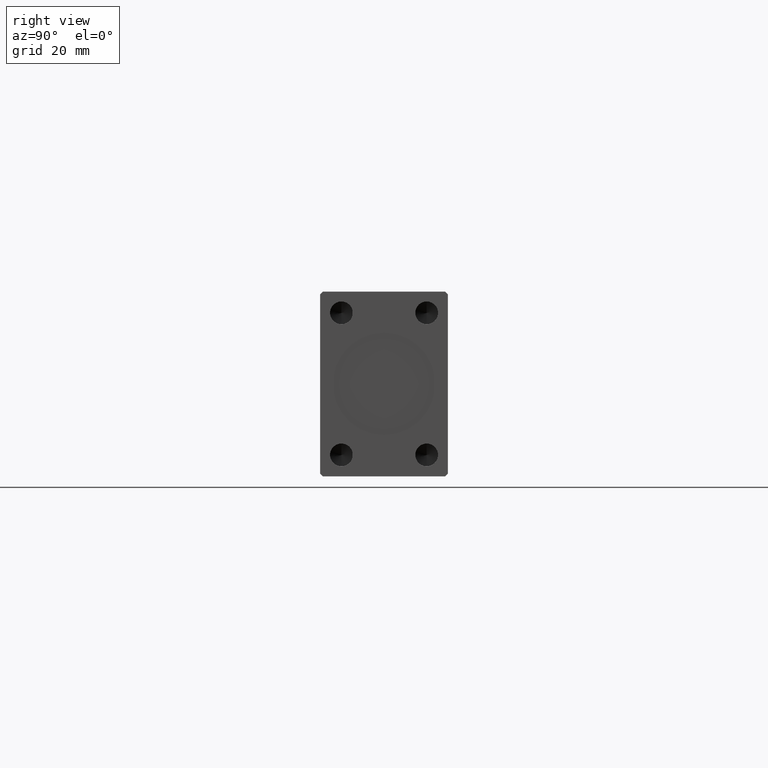
[diagram: clean part render]
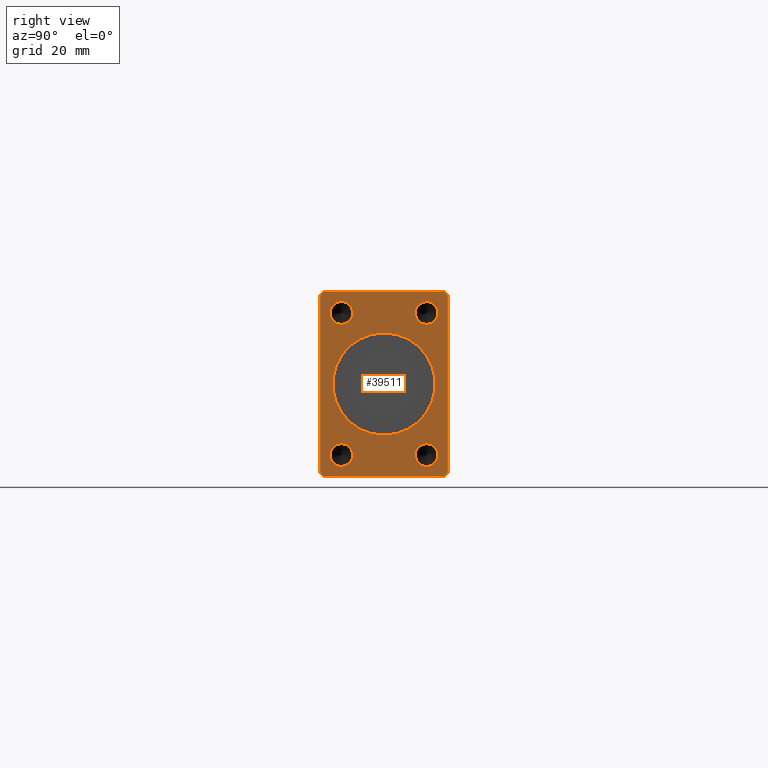
[diagram: same view with one face highlighted and labeled with its STEP entity id]
A machine part, right view. The second image highlights one B-rep face of the part: STEP entity #39511.
In plain terms, the highlighted planar face has unit normal (1, 0, 0).
Its self-contained STEP definition (entity closure, byte-faithful):
#185 = EDGE_CURVE ( 'NONE', #37455, #28257, #964, .T. ) ;
#287 = DIRECTION ( 'NONE',  ( 0.000000000000000000, -1.000000000000000000, 0.000000000000000000 ) ) ;
#728 = LINE ( 'NONE', #28377, #23408 ) ;
#858 = DIRECTION ( 'NONE',  ( 0.000000000000000000, 0.000000000000000000, -1.000000000000000000 ) ) ;
#964 = LINE ( 'NONE', #10987, #33993 ) ;
#1012 = CARTESIAN_POINT ( 'NONE',  ( 238.0000000000000000, 15.00000000000000355, -24.99999999999999289 ) ) ;
#1384 = ORIENTED_EDGE ( 'NONE', *, *, #11431, .T. ) ;
#1779 = DIRECTION ( 'NONE',  ( 1.000000000000000000, 0.000000000000000000, 0.000000000000000000 ) ) ;
#1831 = CARTESIAN_POINT ( 'NONE',  ( 238.0000000000000000, -21.50000000000001421, 32.50000000000000000 ) ) ;
#1906 = CIRCLE ( 'NONE', #5473, 18.00000000000000000 ) ;
#1943 = CARTESIAN_POINT ( 'NONE',  ( 238.0000000000000000, -14.99999999999999645, 20.99999999999999645 ) ) ;
#2081 = CARTESIAN_POINT ( 'NONE',  ( 238.0000000000000000, -14.99999999999999645, -20.99999999999999645 ) ) ;
#2492 = DIRECTION ( 'NONE',  ( 0.000000000000000000, 0.000000000000000000, -1.000000000000000000 ) ) ;
#2562 = EDGE_LOOP ( 'NONE', ( #31180, #30027 ) ) ;
#2996 = CARTESIAN_POINT ( 'NONE',  ( 238.0000000000000000, -14.99999999999999645, 24.99999999999999645 ) ) ;
#3559 = VECTOR ( 'NONE', #14101, 1000.000000000000114 ) ;
#3602 = CARTESIAN_POINT ( 'NONE',  ( 238.0000000000000000, -14.99999999999999645, -24.99999999999999645 ) ) ;
#3707 = LINE ( 'NONE', #20862, #33533 ) ;
#4092 = DIRECTION ( 'NONE',  ( 0.000000000000000000, -0.7071067811865474617, 0.7071067811865474617 ) ) ;
#4483 = EDGE_LOOP ( 'NONE', ( #6012, #23291 ) ) ;
#5202 = LINE ( 'NONE', #22794, #40582 ) ;
#5473 = AXIS2_PLACEMENT_3D ( 'NONE', #36135, #1779, #15153 ) ;
#5906 = CIRCLE ( 'NONE', #35856, 4.000000000000000000 ) ;
#6012 = ORIENTED_EDGE ( 'NONE', *, *, #13018, .F. ) ;
#6263 = VERTEX_POINT ( 'NONE', #11597 ) ;
#7966 = CARTESIAN_POINT ( 'NONE',  ( 238.0000000000000000, 22.49999999999999645, -31.50000000000000000 ) ) ;
#8110 = CARTESIAN_POINT ( 'NONE',  ( 238.0000000000000000, 15.00000000000000355, 21.00000000000000000 ) ) ;
#8508 = DIRECTION ( 'NONE',  ( 1.000000000000000000, 0.000000000000000000, 0.000000000000000000 ) ) ;
#8977 = CARTESIAN_POINT ( 'NONE',  ( 238.0000000000000000, -14.99999999999999645, 28.99999999999999645 ) ) ;
#9040 = EDGE_LOOP ( 'NONE', ( #20314, #43848 ) ) ;
#9171 = EDGE_LOOP ( 'NONE', ( #20826, #36707, #10141, #37940, #24529, #40621, #12924, #1384 ) ) ;
#9816 = DIRECTION ( 'NONE',  ( 0.000000000000000000, 0.000000000000000000, -1.000000000000000000 ) ) ;
#10141 = ORIENTED_EDGE ( 'NONE', *, *, #40718, .T. ) ;
#10402 = EDGE_CURVE ( 'NONE', #35313, #29761, #18508, .T. ) ;
#10682 = EDGE_CURVE ( 'NONE', #28611, #26568, #23394, .T. ) ;
#10987 = CARTESIAN_POINT ( 'NONE',  ( 238.0000000000000000, 22.49999999999999645, 31.50000000000000000 ) ) ;
#11030 = DIRECTION ( 'NONE',  ( 0.000000000000000000, 0.000000000000000000, -1.000000000000000000 ) ) ;
#11332 = DIRECTION ( 'NONE',  ( 0.000000000000000000, 0.000000000000000000, -1.000000000000000000 ) ) ;
#11431 = EDGE_CURVE ( 'NONE', #26568, #37455, #5202, .T. ) ;
#11509 = AXIS2_PLACEMENT_3D ( 'NONE', #2996, #16596, #43825 ) ;
#11588 = VERTEX_POINT ( 'NONE', #43740 ) ;
#11597 = CARTESIAN_POINT ( 'NONE',  ( 238.0000000000000000, -22.50000000000001421, -31.50000000000000711 ) ) ;
#12060 = DIRECTION ( 'NONE',  ( 0.000000000000000000, 0.000000000000000000, -1.000000000000000000 ) ) ;
#12394 = EDGE_CURVE ( 'NONE', #11588, #44065, #29941, .T. ) ;
#12821 = AXIS2_PLACEMENT_3D ( 'NONE', #3602, #27902, #38166 ) ;
#12924 = ORIENTED_EDGE ( 'NONE', *, *, #10682, .T. ) ;
#12967 = EDGE_CURVE ( 'NONE', #23565, #6263, #30466, .T. ) ;
#13018 = EDGE_CURVE ( 'NONE', #38925, #36567, #37071, .T. ) ;
#13500 = EDGE_CURVE ( 'NONE', #30723, #28611, #3707, .T. ) ;
#14101 = DIRECTION ( 'NONE',  ( 0.000000000000000000, -0.7071067811865474617, -0.7071067811865474617 ) ) ;
#14240 = DIRECTION ( 'NONE',  ( 1.000000000000000000, -0.000000000000000000, -0.000000000000000000 ) ) ;
#14312 = DIRECTION ( 'NONE',  ( 0.000000000000000000, 0.7071067811865451302, -0.7071067811865500152 ) ) ;
#14975 = FACE_BOUND ( 'NONE', #2562, .T. ) ;
#15000 = VECTOR ( 'NONE', #37598, 1000.000000000000000 ) ;
#15153 = DIRECTION ( 'NONE',  ( 0.000000000000000000, 0.000000000000000000, -1.000000000000000000 ) ) ;
#16405 = CIRCLE ( 'NONE', #12821, 4.000000000000000000 ) ;
#16596 = DIRECTION ( 'NONE',  ( 1.000000000000000000, -0.000000000000000000, -0.000000000000000000 ) ) ;
#16631 = CARTESIAN_POINT ( 'NONE',  ( 238.0000000000000000, -22.50000000000001776, 31.50000000000000000 ) ) ;
#17053 = AXIS2_PLACEMENT_3D ( 'NONE', #17512, #8508, #12060 ) ;
#17228 = EDGE_CURVE ( 'NONE', #31362, #18156, #43603, .T. ) ;
#17230 = AXIS2_PLACEMENT_3D ( 'NONE', #41919, #14240, #11332 ) ;
#17282 = CARTESIAN_POINT ( 'NONE',  ( 238.0000000000000000, 21.49999999999999645, 32.50000000000000000 ) ) ;
#17505 = EDGE_CURVE ( 'NONE', #29761, #35313, #29344, .T. ) ;
#17512 = CARTESIAN_POINT ( 'NONE',  ( 238.0000000000000000, 0.000000000000000000, 0.000000000000000000 ) ) ;
#17842 = AXIS2_PLACEMENT_3D ( 'NONE', #1012, #41620, #11030 ) ;
#18156 = VERTEX_POINT ( 'NONE', #8977 ) ;
#18508 = CIRCLE ( 'NONE', #24193, 4.000000000000000000 ) ;
#18548 = FACE_BOUND ( 'NONE', #9040, .T. ) ;
#18846 = CARTESIAN_POINT ( 'NONE',  ( 238.0000000000000000, -22.50000000000001776, 31.50000000000000000 ) ) ;
#19007 = VERTEX_POINT ( 'NONE', #2081 ) ;
#19452 = DIRECTION ( 'NONE',  ( 1.000000000000000000, -0.000000000000000000, -0.000000000000000000 ) ) ;
#19648 = CARTESIAN_POINT ( 'NONE',  ( 238.0000000000000000, 0.000000000000000000, 0.000000000000000000 ) ) ;
#20314 = ORIENTED_EDGE ( 'NONE', *, *, #10402, .F. ) ;
#20621 = FACE_BOUND ( 'NONE', #4483, .T. ) ;
#20665 = AXIS2_PLACEMENT_3D ( 'NONE', #19648, #26562, #9816 ) ;
#20692 = EDGE_LOOP ( 'NONE', ( #28051, #23400 ) ) ;
#20826 = ORIENTED_EDGE ( 'NONE', *, *, #185, .T. ) ;
#20862 = CARTESIAN_POINT ( 'NONE',  ( 238.0000000000000000, -21.50000000000001776, -32.50000000000000711 ) ) ;
#21063 = FACE_BOUND ( 'NONE', #22347, .T. ) ;
#21141 = CARTESIAN_POINT ( 'NONE',  ( 238.0000000000000000, -14.99999999999999645, -24.99999999999999645 ) ) ;
#21265 = EDGE_CURVE ( 'NONE', #18156, #31362, #5906, .T. ) ;
#21886 = FACE_BOUND ( 'NONE', #20692, .T. ) ;
#22004 = ORIENTED_EDGE ( 'NONE', *, *, #17228, .F. ) ;
#22069 = VECTOR ( 'NONE', #36795, 1000.000000000000114 ) ;
#22191 = DIRECTION ( 'NONE',  ( 0.000000000000000000, 0.000000000000000000, -1.000000000000000000 ) ) ;
#22347 = EDGE_LOOP ( 'NONE', ( #22004, #28778 ) ) ;
#22359 = AXIS2_PLACEMENT_3D ( 'NONE', #21141, #34770, #858 ) ;
#22661 = VERTEX_POINT ( 'NONE', #1831 ) ;
#22787 = CARTESIAN_POINT ( 'NONE',  ( 238.0000000000000000, -14.99999999999999645, 24.99999999999999645 ) ) ;
#22794 = CARTESIAN_POINT ( 'NONE',  ( 238.0000000000000000, 22.49999999999999645, -31.50000000000000000 ) ) ;
#22973 = VERTEX_POINT ( 'NONE', #24315 ) ;
#23218 = EDGE_CURVE ( 'NONE', #36567, #38925, #29471, .T. ) ;
#23291 = ORIENTED_EDGE ( 'NONE', *, *, #23218, .F. ) ;
#23394 = LINE ( 'NONE', #26527, #22069 ) ;
#23400 = ORIENTED_EDGE ( 'NONE', *, *, #24142, .F. ) ;
#23408 = VECTOR ( 'NONE', #14312, 1000.000000000000114 ) ;
#23565 = VERTEX_POINT ( 'NONE', #18846 ) ;
#23816 = CARTESIAN_POINT ( 'NONE',  ( 238.0000000000000000, 0.000000000000000000, -18.00000000000000000 ) ) ;
#24142 = EDGE_CURVE ( 'NONE', #19007, #22973, #30204, .T. ) ;
#24193 = AXIS2_PLACEMENT_3D ( 'NONE', #25754, #32690, #22191 ) ;
#24315 = CARTESIAN_POINT ( 'NONE',  ( 238.0000000000000000, -14.99999999999999645, -28.99999999999999645 ) ) ;
#24529 = ORIENTED_EDGE ( 'NONE', *, *, #38800, .T. ) ;
#25034 = CARTESIAN_POINT ( 'NONE',  ( 238.0000000000000000, -21.50000000000001421, 32.50000000000000000 ) ) ;
#25234 = PLANE ( 'NONE',  #17053 ) ;
#25754 = CARTESIAN_POINT ( 'NONE',  ( 238.0000000000000000, 15.00000000000000355, 25.00000000000000000 ) ) ;
#26527 = CARTESIAN_POINT ( 'NONE',  ( 238.0000000000000000, 21.49999999999999645, -32.50000000000000000 ) ) ;
#26562 = DIRECTION ( 'NONE',  ( 1.000000000000000000, 0.000000000000000000, 0.000000000000000000 ) ) ;
#26568 = VERTEX_POINT ( 'NONE', #7966 ) ;
#27725 = CARTESIAN_POINT ( 'NONE',  ( 238.0000000000000000, 21.49999999999999645, 32.50000000000000000 ) ) ;
#27840 = CARTESIAN_POINT ( 'NONE',  ( 238.0000000000000000, 15.00000000000000355, -24.99999999999999289 ) ) ;
#27902 = DIRECTION ( 'NONE',  ( 1.000000000000000000, -0.000000000000000000, -0.000000000000000000 ) ) ;
#28051 = ORIENTED_EDGE ( 'NONE', *, *, #42045, .F. ) ;
#28257 = VERTEX_POINT ( 'NONE', #17282 ) ;
#28377 = CARTESIAN_POINT ( 'NONE',  ( 238.0000000000000000, -22.50000000000001421, -31.50000000000000711 ) ) ;
#28487 = VECTOR ( 'NONE', #287, 1000.000000000000000 ) ;
#28591 = FACE_OUTER_BOUND ( 'NONE', #9171, .T. ) ;
#28611 = VERTEX_POINT ( 'NONE', #42644 ) ;
#28778 = ORIENTED_EDGE ( 'NONE', *, *, #21265, .F. ) ;
#29344 = CIRCLE ( 'NONE', #17230, 4.000000000000000000 ) ;
#29471 = CIRCLE ( 'NONE', #40838, 4.000000000000000000 ) ;
#29761 = VERTEX_POINT ( 'NONE', #42813 ) ;
#29941 = CIRCLE ( 'NONE', #20665, 18.00000000000000000 ) ;
#30027 = ORIENTED_EDGE ( 'NONE', *, *, #12394, .F. ) ;
#30204 = CIRCLE ( 'NONE', #22359, 4.000000000000000000 ) ;
#30466 = LINE ( 'NONE', #16631, #15000 ) ;
#30723 = VERTEX_POINT ( 'NONE', #31466 ) ;
#31180 = ORIENTED_EDGE ( 'NONE', *, *, #43921, .F. ) ;
#31197 = DIRECTION ( 'NONE',  ( 0.000000000000000000, 0.000000000000000000, -1.000000000000000000 ) ) ;
#31362 = VERTEX_POINT ( 'NONE', #1943 ) ;
#31466 = CARTESIAN_POINT ( 'NONE',  ( 238.0000000000000000, -21.50000000000001776, -32.50000000000000711 ) ) ;
#32690 = DIRECTION ( 'NONE',  ( 1.000000000000000000, -0.000000000000000000, -0.000000000000000000 ) ) ;
#33533 = VECTOR ( 'NONE', #37606, 1000.000000000000000 ) ;
#33993 = VECTOR ( 'NONE', #4092, 1000.000000000000114 ) ;
#34089 = CARTESIAN_POINT ( 'NONE',  ( 238.0000000000000000, 15.00000000000000355, -28.99999999999999289 ) ) ;
#34427 = LINE ( 'NONE', #27725, #28487 ) ;
#34627 = CARTESIAN_POINT ( 'NONE',  ( 238.0000000000000000, 22.49999999999999645, 31.50000000000000000 ) ) ;
#34770 = DIRECTION ( 'NONE',  ( 1.000000000000000000, -0.000000000000000000, -0.000000000000000000 ) ) ;
#35060 = CARTESIAN_POINT ( 'NONE',  ( 238.0000000000000000, 15.00000000000000355, -20.99999999999999289 ) ) ;
#35198 = DIRECTION ( 'NONE',  ( 1.000000000000000000, -0.000000000000000000, -0.000000000000000000 ) ) ;
#35313 = VERTEX_POINT ( 'NONE', #8110 ) ;
#35856 = AXIS2_PLACEMENT_3D ( 'NONE', #22787, #19452, #2492 ) ;
#36135 = CARTESIAN_POINT ( 'NONE',  ( 238.0000000000000000, 0.000000000000000000, 0.000000000000000000 ) ) ;
#36420 = DIRECTION ( 'NONE',  ( 0.000000000000000000, 0.000000000000000000, 1.000000000000000000 ) ) ;
#36567 = VERTEX_POINT ( 'NONE', #35060 ) ;
#36707 = ORIENTED_EDGE ( 'NONE', *, *, #40769, .T. ) ;
#36795 = DIRECTION ( 'NONE',  ( 0.000000000000000000, 0.7071067811865474617, 0.7071067811865474617 ) ) ;
#37071 = CIRCLE ( 'NONE', #17842, 4.000000000000000000 ) ;
#37455 = VERTEX_POINT ( 'NONE', #34627 ) ;
#37598 = DIRECTION ( 'NONE',  ( 0.000000000000000000, 5.507058653894625853E-17, -1.000000000000000000 ) ) ;
#37606 = DIRECTION ( 'NONE',  ( 0.000000000000000000, 1.000000000000000000, 1.613696256722610912E-16 ) ) ;
#37940 = ORIENTED_EDGE ( 'NONE', *, *, #12967, .T. ) ;
#38166 = DIRECTION ( 'NONE',  ( 0.000000000000000000, 0.000000000000000000, -1.000000000000000000 ) ) ;
#38800 = EDGE_CURVE ( 'NONE', #6263, #30723, #728, .T. ) ;
#38925 = VERTEX_POINT ( 'NONE', #34089 ) ;
#39511 = ADVANCED_FACE ( 'NONE', ( #14975, #18548, #21886, #20621, #21063, #28591 ), #25234, .T. ) ;
#40582 = VECTOR ( 'NONE', #36420, 1000.000000000000000 ) ;
#40621 = ORIENTED_EDGE ( 'NONE', *, *, #13500, .T. ) ;
#40718 = EDGE_CURVE ( 'NONE', #22661, #23565, #41344, .T. ) ;
#40769 = EDGE_CURVE ( 'NONE', #28257, #22661, #34427, .T. ) ;
#40838 = AXIS2_PLACEMENT_3D ( 'NONE', #27840, #35198, #31197 ) ;
#41344 = LINE ( 'NONE', #25034, #3559 ) ;
#41620 = DIRECTION ( 'NONE',  ( 1.000000000000000000, -0.000000000000000000, -0.000000000000000000 ) ) ;
#41919 = CARTESIAN_POINT ( 'NONE',  ( 238.0000000000000000, 15.00000000000000355, 25.00000000000000000 ) ) ;
#42045 = EDGE_CURVE ( 'NONE', #22973, #19007, #16405, .T. ) ;
#42644 = CARTESIAN_POINT ( 'NONE',  ( 238.0000000000000000, 21.49999999999999645, -32.50000000000000000 ) ) ;
#42813 = CARTESIAN_POINT ( 'NONE',  ( 238.0000000000000000, 15.00000000000000355, 29.00000000000000000 ) ) ;
#43603 = CIRCLE ( 'NONE', #11509, 4.000000000000000000 ) ;
#43740 = CARTESIAN_POINT ( 'NONE',  ( 238.0000000000000000, 2.204364238465235428E-15, 18.00000000000000000 ) ) ;
#43825 = DIRECTION ( 'NONE',  ( 0.000000000000000000, 0.000000000000000000, -1.000000000000000000 ) ) ;
#43848 = ORIENTED_EDGE ( 'NONE', *, *, #17505, .F. ) ;
#43921 = EDGE_CURVE ( 'NONE', #44065, #11588, #1906, .T. ) ;
#44065 = VERTEX_POINT ( 'NONE', #23816 ) ;